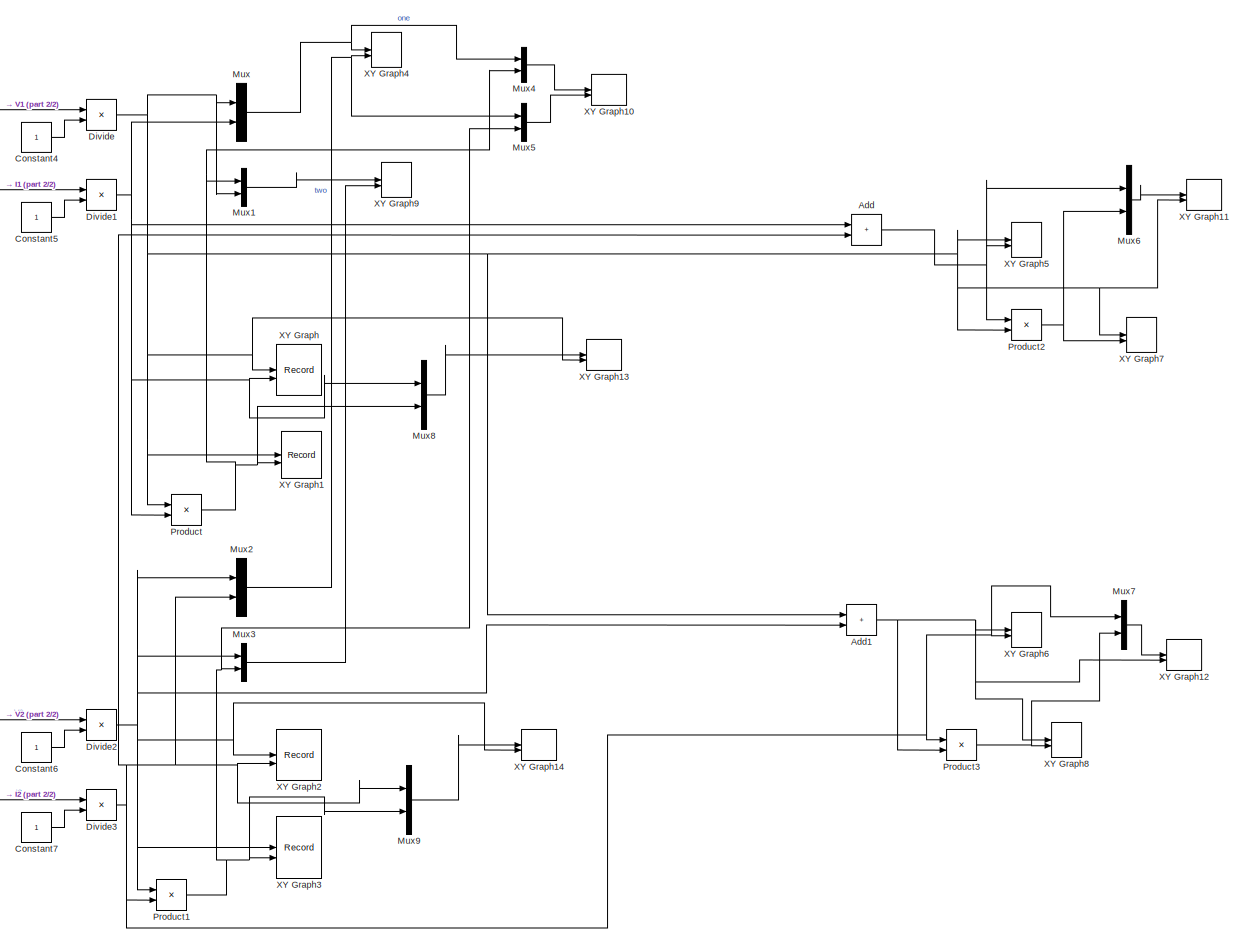
[diagram: root canvas - part 1/2, most of the canvas]
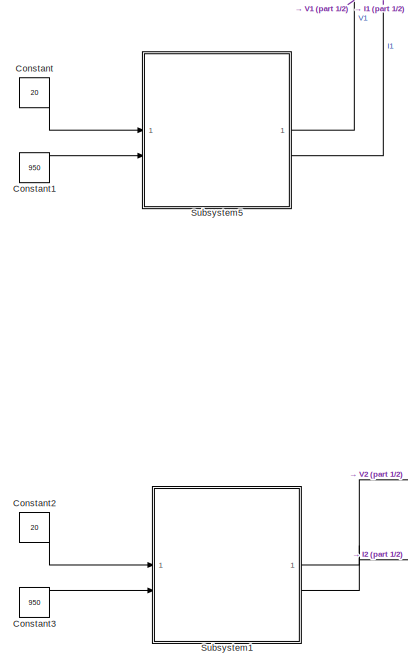
[diagram: root canvas - part 2/2, middle left region]
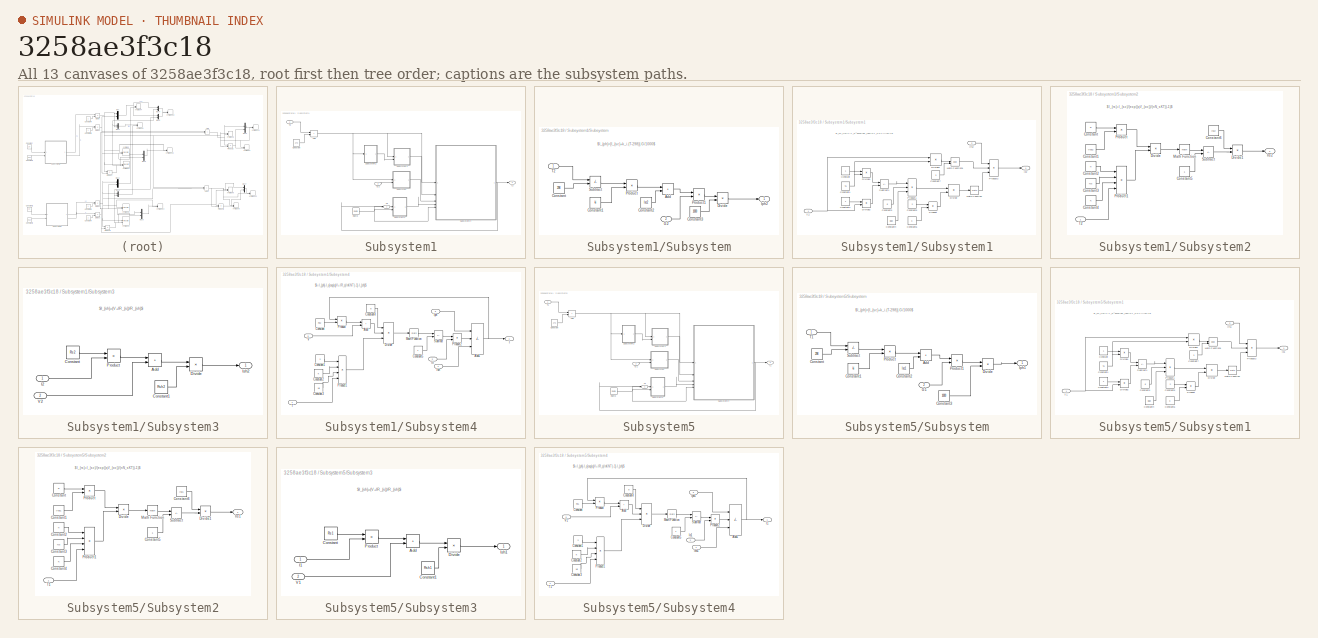
[diagram: thumbnail index - all 13 canvases of the model, root first then tree order]
MODEL slx_3258ae3f3c18
KIND model
CONFIG AbsTol = auto
CONFIG EnableMultiTasking = off
CONFIG FixedStep = auto
CONFIG InitFcn = Rs1=0.22;\nRsh1=100000;\nVoc1=0.7;\nIsc1=0.04;\n\nRs2=0.22;\nRsh2=360;\nVoc2=0.7;\nIsc2=0.04;\n\nki=0.00005926;\n%ki=0;\nq=1.6e-19;\nK=1.30e-23;\nn=1.3;\nEgo=1.1;\nTn=298;\nNs=1;
CONFIG MaxStep = auto
CONFIG MinStep = auto
CONFIG RelTol = 1e-3
CONFIG SampleTimeConstraint = Unconstrained
CONFIG SolverName = VariableStepAuto
CONFIG StartTime = 0.0
CONFIG StopTime = 2.5
BLOCK [Sum] Add
  IconShape = rectangular
BLOCK [Sum] Add1
  IconShape = rectangular
BLOCK [Constant] Constant
  Value = 20
BLOCK [Constant] Constant1
  Value = 950
BLOCK [Constant] Constant2
  Value = 20
BLOCK [Constant] Constant3
  Value = 950
BLOCK [Constant] Constant4
BLOCK [Constant] Constant5
BLOCK [Constant] Constant6
BLOCK [Constant] Constant7
BLOCK [Product] Divide
  Inputs = */
BLOCK [Product] Divide1
  Inputs = */
BLOCK [Product] Divide2
  Inputs = */
BLOCK [Product] Divide3
  Inputs = */
BLOCK [Mux] Mux
  DisplayOption = bar
  Inputs = 2
BLOCK [Mux] Mux1
  DisplayOption = bar
  Inputs = 2
BLOCK [Mux] Mux2
  DisplayOption = bar
  Inputs = 2
BLOCK [Mux] Mux3
  DisplayOption = bar
  Inputs = 2
BLOCK [Mux] Mux4
  DisplayOption = bar
  Inputs = 2
BLOCK [Mux] Mux5
  DisplayOption = bar
  Inputs = 2
BLOCK [Mux] Mux6
  DisplayOption = bar
  Inputs = 2
BLOCK [Mux] Mux7
  DisplayOption = bar
  Inputs = 2
BLOCK [Mux] Mux8
  DisplayOption = bar
  Inputs = 2
BLOCK [Mux] Mux9
  DisplayOption = bar
  Inputs = 2
BLOCK [Product] Product
BLOCK [Product] Product1
BLOCK [Product] Product2
BLOCK [Product] Product3
BLOCK [SubSystem] Subsystem1
BLOCK [Sum] Subsystem1/Add
  IconShape = rectangular
BLOCK [Constant] Subsystem1/Constant
  Value = 273
BLOCK [Inport] Subsystem1/G2
  Port = 2
BLOCK [Outport] Subsystem1/I2
  Port = 2
BLOCK [Reference] Subsystem1/Ramp  REF=simulink/Sources/Ramp
  SourceBlock = simulink/Sources/Ramp
  SourceType = Ramp
BLOCK [SubSystem] Subsystem1/Subsystem
BLOCK [Sum] Subsystem1/Subsystem/Add
  IconShape = rectangular
BLOCK [Constant] Subsystem1/Subsystem/Constant
  Value = 298
BLOCK [Constant] Subsystem1/Subsystem/Constant1
  Value = ki
BLOCK [Constant] Subsystem1/Subsystem/Constant2
  Value = Isc2
BLOCK [Constant] Subsystem1/Subsystem/Constant3
  Value = 1000
BLOCK [Product] Subsystem1/Subsystem/Divide
  Inputs = */
BLOCK [Inport] Subsystem1/Subsystem/G2
  Port = 2
BLOCK [Outport] Subsystem1/Subsystem/Iph2
BLOCK [Product] Subsystem1/Subsystem/Product
BLOCK [Product] Subsystem1/Subsystem/Product1
BLOCK [Sum] Subsystem1/Subsystem/Subtract
  IconShape = rectangular
  Inputs = +-
BLOCK [Inport] Subsystem1/Subsystem/T2
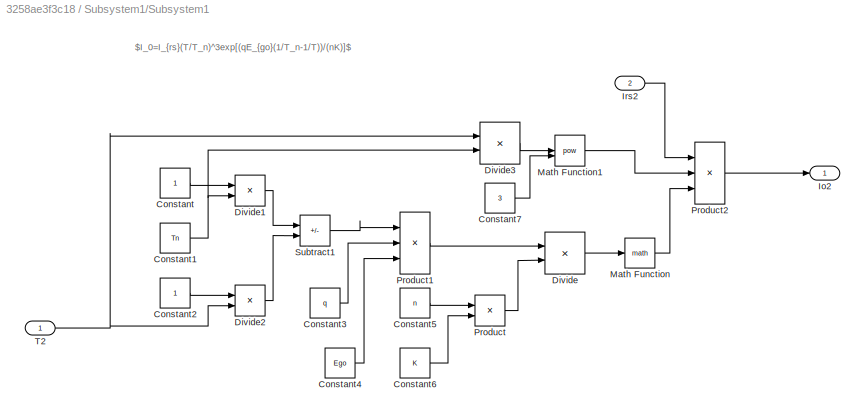
BLOCK [SubSystem] Subsystem1/Subsystem1
BLOCK [Constant] Subsystem1/Subsystem1/Constant
BLOCK [Constant] Subsystem1/Subsystem1/Constant1
  Value = Tn
BLOCK [Constant] Subsystem1/Subsystem1/Constant2
BLOCK [Constant] Subsystem1/Subsystem1/Constant3
  Value = q
BLOCK [Constant] Subsystem1/Subsystem1/Constant4
  Value = Ego
BLOCK [Constant] Subsystem1/Subsystem1/Constant5
  Value = n
BLOCK [Constant] Subsystem1/Subsystem1/Constant6
  Value = K
BLOCK [Constant] Subsystem1/Subsystem1/Constant7
  Value = 3
BLOCK [Product] Subsystem1/Subsystem1/Divide
  Inputs = */
BLOCK [Product] Subsystem1/Subsystem1/Divide1
  Inputs = */
BLOCK [Product] Subsystem1/Subsystem1/Divide2
  Inputs = */
BLOCK [Product] Subsystem1/Subsystem1/Divide3
  Inputs = */
BLOCK [Outport] Subsystem1/Subsystem1/Io2
BLOCK [Inport] Subsystem1/Subsystem1/Irs2
  Port = 2
BLOCK [Math] Subsystem1/Subsystem1/Math Function
BLOCK [Math] Subsystem1/Subsystem1/Math Function1
  Operator = pow
BLOCK [Product] Subsystem1/Subsystem1/Product
BLOCK [Product] Subsystem1/Subsystem1/Product1
  Inputs = 3
BLOCK [Product] Subsystem1/Subsystem1/Product2
  Inputs = 3
BLOCK [Sum] Subsystem1/Subsystem1/Subtract1
  IconShape = rectangular
  Inputs = +-
BLOCK [Inport] Subsystem1/Subsystem1/T2
BLOCK [SubSystem] Subsystem1/Subsystem2
BLOCK [Constant] Subsystem1/Subsystem2/Constant
  Value = q
BLOCK [Constant] Subsystem1/Subsystem2/Constant1
  Value = Voc2
BLOCK [Constant] Subsystem1/Subsystem2/Constant2
  Value = n
BLOCK [Constant] Subsystem1/Subsystem2/Constant3
  Value = Ns
BLOCK [Constant] Subsystem1/Subsystem2/Constant4
  Value = K
BLOCK [Constant] Subsystem1/Subsystem2/Constant5
BLOCK [Constant] Subsystem1/Subsystem2/Constant6
  Value = Isc2
BLOCK [Product] Subsystem1/Subsystem2/Divide
  Inputs = */
BLOCK [Product] Subsystem1/Subsystem2/Divide1
  Inputs = */
BLOCK [Outport] Subsystem1/Subsystem2/Irs2
BLOCK [Math] Subsystem1/Subsystem2/Math Function
BLOCK [Product] Subsystem1/Subsystem2/Product
BLOCK [Product] Subsystem1/Subsystem2/Product1
  Inputs = 4
BLOCK [Sum] Subsystem1/Subsystem2/Subtract
  IconShape = rectangular
  Inputs = +-
BLOCK [Inport] Subsystem1/Subsystem2/T2
BLOCK [SubSystem] Subsystem1/Subsystem3
BLOCK [Sum] Subsystem1/Subsystem3/Add
  IconShape = rectangular
BLOCK [Constant] Subsystem1/Subsystem3/Constant
  Value = Rs2
BLOCK [Constant] Subsystem1/Subsystem3/Constant1
  Value = Rsh2
BLOCK [Product] Subsystem1/Subsystem3/Divide
  Inputs = */
BLOCK [Inport] Subsystem1/Subsystem3/I2
BLOCK [Outport] Subsystem1/Subsystem3/Ish2
BLOCK [Product] Subsystem1/Subsystem3/Product
BLOCK [Inport] Subsystem1/Subsystem3/V2
  Port = 2
BLOCK [SubSystem] Subsystem1/Subsystem4
BLOCK [Sum] Subsystem1/Subsystem4/Add
  IconShape = rectangular
BLOCK [Sum] Subsystem1/Subsystem4/Add1
  IconShape = rectangular
  Inputs = +--
BLOCK [Constant] Subsystem1/Subsystem4/Constant
  Value = Rs2
BLOCK [Constant] Subsystem1/Subsystem4/Constant1
  Value = n
BLOCK [Constant] Subsystem1/Subsystem4/Constant2
  Value = K
BLOCK [Constant] Subsystem1/Subsystem4/Constant3
  Value = Ns
BLOCK [Constant] Subsystem1/Subsystem4/Constant4
  Value = q
BLOCK [Constant] Subsystem1/Subsystem4/Constant5
BLOCK [Product] Subsystem1/Subsystem4/Divide
  Inputs = **/
BLOCK [Outport] Subsystem1/Subsystem4/I
BLOCK [Inport] Subsystem1/Subsystem4/Io
  Port = 2
BLOCK [Inport] Subsystem1/Subsystem4/Iph
  Port = 3
BLOCK [Inport] Subsystem1/Subsystem4/Ish
  Port = 4
BLOCK [Math] Subsystem1/Subsystem4/Math Function
BLOCK [Product] Subsystem1/Subsystem4/Product
BLOCK [Product] Subsystem1/Subsystem4/Product1
  Inputs = 4
BLOCK [Product] Subsystem1/Subsystem4/Product2
BLOCK [Sum] Subsystem1/Subsystem4/Subtract
  IconShape = rectangular
  Inputs = +-
BLOCK [Inport] Subsystem1/Subsystem4/T
BLOCK [Inport] Subsystem1/Subsystem4/V
  Port = 5
BLOCK [Inport] Subsystem1/T2
BLOCK [Outport] Subsystem1/V2
BLOCK [SubSystem] Subsystem5
BLOCK [Sum] Subsystem5/Add
  IconShape = rectangular
BLOCK [Constant] Subsystem5/Constant
  Value = 273
BLOCK [Inport] Subsystem5/G1
  Port = 2
BLOCK [Outport] Subsystem5/I1
  Port = 2
BLOCK [Reference] Subsystem5/Ramp  REF=simulink/Sources/Ramp
  SourceBlock = simulink/Sources/Ramp
  SourceType = Ramp
BLOCK [SubSystem] Subsystem5/Subsystem
BLOCK [Sum] Subsystem5/Subsystem/Add
  IconShape = rectangular
BLOCK [Constant] Subsystem5/Subsystem/Constant
  Value = 298
BLOCK [Constant] Subsystem5/Subsystem/Constant1
  Value = ki
BLOCK [Constant] Subsystem5/Subsystem/Constant2
  Value = Isc1
BLOCK [Constant] Subsystem5/Subsystem/Constant3
  Value = 1000
BLOCK [Product] Subsystem5/Subsystem/Divide
  Inputs = */
BLOCK [Inport] Subsystem5/Subsystem/G1
  Port = 2
BLOCK [Outport] Subsystem5/Subsystem/Iph1
BLOCK [Product] Subsystem5/Subsystem/Product
BLOCK [Product] Subsystem5/Subsystem/Product1
BLOCK [Sum] Subsystem5/Subsystem/Subtract
  IconShape = rectangular
  Inputs = +-
BLOCK [Inport] Subsystem5/Subsystem/T1
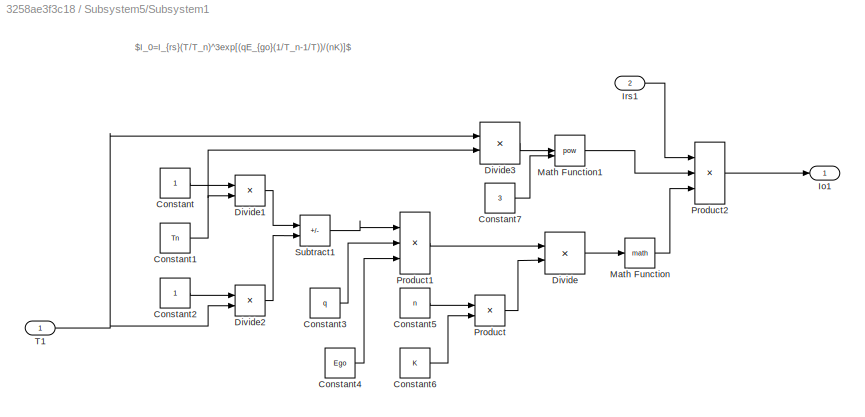
BLOCK [SubSystem] Subsystem5/Subsystem1
BLOCK [Constant] Subsystem5/Subsystem1/Constant
BLOCK [Constant] Subsystem5/Subsystem1/Constant1
  Value = Tn
BLOCK [Constant] Subsystem5/Subsystem1/Constant2
BLOCK [Constant] Subsystem5/Subsystem1/Constant3
  Value = q
BLOCK [Constant] Subsystem5/Subsystem1/Constant4
  Value = Ego
BLOCK [Constant] Subsystem5/Subsystem1/Constant5
  Value = n
BLOCK [Constant] Subsystem5/Subsystem1/Constant6
  Value = K
BLOCK [Constant] Subsystem5/Subsystem1/Constant7
  Value = 3
BLOCK [Product] Subsystem5/Subsystem1/Divide
  Inputs = */
BLOCK [Product] Subsystem5/Subsystem1/Divide1
  Inputs = */
BLOCK [Product] Subsystem5/Subsystem1/Divide2
  Inputs = */
BLOCK [Product] Subsystem5/Subsystem1/Divide3
  Inputs = */
BLOCK [Outport] Subsystem5/Subsystem1/Io1
BLOCK [Inport] Subsystem5/Subsystem1/Irs1
  Port = 2
BLOCK [Math] Subsystem5/Subsystem1/Math Function
BLOCK [Math] Subsystem5/Subsystem1/Math Function1
  Operator = pow
BLOCK [Product] Subsystem5/Subsystem1/Product
BLOCK [Product] Subsystem5/Subsystem1/Product1
  Inputs = 3
BLOCK [Product] Subsystem5/Subsystem1/Product2
  Inputs = 3
BLOCK [Sum] Subsystem5/Subsystem1/Subtract1
  IconShape = rectangular
  Inputs = +-
BLOCK [Inport] Subsystem5/Subsystem1/T1
BLOCK [SubSystem] Subsystem5/Subsystem2
BLOCK [Constant] Subsystem5/Subsystem2/Constant
  Value = q
BLOCK [Constant] Subsystem5/Subsystem2/Constant1
  Value = Voc1
BLOCK [Constant] Subsystem5/Subsystem2/Constant2
  Value = n
BLOCK [Constant] Subsystem5/Subsystem2/Constant3
  Value = Ns
BLOCK [Constant] Subsystem5/Subsystem2/Constant4
  Value = K
BLOCK [Constant] Subsystem5/Subsystem2/Constant5
BLOCK [Constant] Subsystem5/Subsystem2/Constant6
  Value = Isc1
BLOCK [Product] Subsystem5/Subsystem2/Divide
  Inputs = */
BLOCK [Product] Subsystem5/Subsystem2/Divide1
  Inputs = */
BLOCK [Outport] Subsystem5/Subsystem2/Irs1
BLOCK [Math] Subsystem5/Subsystem2/Math Function
BLOCK [Product] Subsystem5/Subsystem2/Product
BLOCK [Product] Subsystem5/Subsystem2/Product1
  Inputs = 4
BLOCK [Sum] Subsystem5/Subsystem2/Subtract
  IconShape = rectangular
  Inputs = +-
BLOCK [Inport] Subsystem5/Subsystem2/T1
BLOCK [SubSystem] Subsystem5/Subsystem3
BLOCK [Sum] Subsystem5/Subsystem3/Add
  IconShape = rectangular
BLOCK [Constant] Subsystem5/Subsystem3/Constant
  Value = Rs1
BLOCK [Constant] Subsystem5/Subsystem3/Constant1
  Value = Rsh1
BLOCK [Product] Subsystem5/Subsystem3/Divide
  Inputs = */
BLOCK [Inport] Subsystem5/Subsystem3/I1
BLOCK [Outport] Subsystem5/Subsystem3/Ish1
BLOCK [Product] Subsystem5/Subsystem3/Product
BLOCK [Inport] Subsystem5/Subsystem3/V1
  Port = 2
BLOCK [SubSystem] Subsystem5/Subsystem4
BLOCK [Sum] Subsystem5/Subsystem4/Add
  IconShape = rectangular
BLOCK [Sum] Subsystem5/Subsystem4/Add1
  IconShape = rectangular
  Inputs = +--
BLOCK [Constant] Subsystem5/Subsystem4/Constant
  Value = Rs1
BLOCK [Constant] Subsystem5/Subsystem4/Constant1
  Value = n
BLOCK [Constant] Subsystem5/Subsystem4/Constant2
  Value = K
BLOCK [Constant] Subsystem5/Subsystem4/Constant3
  Value = Ns
BLOCK [Constant] Subsystem5/Subsystem4/Constant4
  Value = q
BLOCK [Constant] Subsystem5/Subsystem4/Constant5
BLOCK [Product] Subsystem5/Subsystem4/Divide
  Inputs = **/
BLOCK [Outport] Subsystem5/Subsystem4/I1
BLOCK [Inport] Subsystem5/Subsystem4/Io1
  Port = 2
BLOCK [Inport] Subsystem5/Subsystem4/Iph1
  Port = 3
BLOCK [Inport] Subsystem5/Subsystem4/Ish1
  Port = 4
BLOCK [Math] Subsystem5/Subsystem4/Math Function
BLOCK [Product] Subsystem5/Subsystem4/Product
BLOCK [Product] Subsystem5/Subsystem4/Product1
  Inputs = 4
BLOCK [Product] Subsystem5/Subsystem4/Product2
BLOCK [Sum] Subsystem5/Subsystem4/Subtract
  IconShape = rectangular
  Inputs = +-
BLOCK [Inport] Subsystem5/Subsystem4/T1
BLOCK [Inport] Subsystem5/Subsystem4/V1
  Port = 5
BLOCK [Inport] Subsystem5/T1
BLOCK [Outport] Subsystem5/V1
BLOCK [Record] XY Graph
  CompatibilityTag = XY
  FileSettingsInternal = {"entries":[{"content":{"excelSettings":{"content":{},"type":"Streamout.ExcelSettings"}},"type":"Streamout.FileSettingStorage","uuid":""}],"packageUris":["http:\/\/schema.mathworks.com\/mf0\/streamout_blocks\/R2020a"],"version":"1.0"}  <repeated x15 — deduplicated; at blocks: XY Graph, XY Graph1, XY Graph10, XY Graph11, XY Graph12, XY Graph13, XY Graph14, XY Graph2, XY Graph3, XY Graph4, XY Graph5, XY Graph6, XY Graph7, XY Graph8, XY Graph9>
  Layout = [1 1]
  SignalsInternal = {"entries":[{"content":{"signals":[{"content":{"blockPath":[],"dimensions":[1],"domain":"","lineColor":"#edb120","port":1,"sid":[""],"signalID":1,"signalName":"Divide"},"type":"RecordBlkView.Signal","uuid":""},{"content":{"blockPath":[],"dimensions":[1],"domain":"","lineColor":"#7e2f8e","port":2,"sid":[""],"signalID":2,"signalName":"Divide1"},"type":"RecordBlkView.Signal","uuid":""}]},"type":"Reco...<+131ch>
  VisualizationBindings = {"xyplotplugin":{"info":[{"series":[],"subplotID":1}]}}
  st = -1
BLOCK [Record] XY Graph1
  CompatibilityTag = XY
  Layout = [1 1]
  SignalsInternal = {"entries":[{"content":{"signals":[{"content":{"blockPath":[],"dimensions":[1],"domain":"","lineColor":"#77ac30","port":1,"sid":[""],"signalID":1,"signalName":"Divide"},"type":"RecordBlkView.Signal","uuid":""},{"content":{"blockPath":[],"dimensions":[1],"domain":"","lineColor":"#4dbeee","port":2,"sid":[""],"signalID":2,"signalName":"Product"},"type":"RecordBlkView.Signal","uuid":""}]},"type":"Reco...<+131ch>
  VisualizationBindings = {"xyplotplugin":{"info":[{"series":[],"subplotID":1}]}}
  st = -1
BLOCK [Record] XY Graph10
  CompatibilityTag = XY
  Layout = [1 1]
  SignalsInternal = {"entries":[{"content":{"signals":[{"content":{"blockPath":[],"dimensions":[3],"domain":"","hasChildren":true,"lineColor":"#a2142f","port":1,"sid":[""],"signalID":1,"signalName":"Mux4"},"type":"RecordBlkView.Signal","uuid":""},{"content":{"blockPath":[],"channel":[1],"dimensions":[3],"domain":"","lineColor":"#139fff","parentID":1,"port":1,"sid":[""],"signalID":2,"signalName":"Mux4"},"type":"Record...<+1364ch>
  VisualizationBindings = {"xyplotplugin":{"info":[{"series":[],"subplotID":1}]}}
BLOCK [Record] XY Graph11
  CompatibilityTag = XY
  Layout = [1 1]
  SignalsInternal = {"entries":[{"content":{"signals":[{"content":{"blockPath":[],"dimensions":[2],"domain":"","hasChildren":true,"lineColor":"#64d413","port":1,"sid":[""],"signalID":1,"signalName":"Mux6"},"type":"RecordBlkView.Signal","uuid":""},{"content":{"blockPath":[],"channel":[1],"dimensions":[2],"domain":"","lineColor":"#ff13a6","parentID":1,"port":1,"sid":[""],"signalID":2,"signalName":"Mux6"},"type":"Record...<+547ch>
  VisualizationBindings = {"xyplotplugin":{"info":[{"series":[],"subplotID":1}]}}
BLOCK [Record] XY Graph12
  CompatibilityTag = XY
  Layout = [1 1]
  SignalsInternal = {"entries":[{"content":{"signals":[{"content":{"blockPath":[],"dimensions":[2],"domain":"","hasChildren":true,"lineColor":"#22b573","port":1,"sid":[""],"signalID":1,"signalName":"Mux7"},"type":"RecordBlkView.Signal","uuid":""},{"content":{"blockPath":[],"channel":[1],"dimensions":[2],"domain":"","lineColor":"#0072bd","parentID":1,"port":1,"sid":[""],"signalID":2,"signalName":"Mux7"},"type":"Record...<+545ch>
  VisualizationBindings = {"xyplotplugin":{"info":[{"series":[],"subplotID":1}]}}
BLOCK [Record] XY Graph13
  CompatibilityTag = XY
  Layout = [1 1]
  SignalsInternal = {"entries":[{"content":{"signals":[{"content":{"blockPath":[],"dimensions":[2],"domain":"","hasChildren":true,"lineColor":"#edb120","port":1,"sid":[""],"signalID":1,"signalName":"Mux8"},"type":"RecordBlkView.Signal","uuid":""},{"content":{"blockPath":[],"channel":[1],"dimensions":[2],"domain":"","lineColor":"#7e2f8e","parentID":1,"port":1,"sid":[""],"signalID":2,"signalName":"Mux8"},"type":"Record...<+547ch>
  VisualizationBindings = {"xyplotplugin":{"info":[{"series":[],"subplotID":1}]}}
BLOCK [Record] XY Graph14
  CompatibilityTag = XY
  Layout = [1 1]
  SignalsInternal = {"entries":[{"content":{"signals":[{"content":{"blockPath":[],"dimensions":[2],"domain":"","hasChildren":true,"lineColor":"#4dbeee","port":1,"sid":[""],"signalID":1,"signalName":"Mux9"},"type":"RecordBlkView.Signal","uuid":""},{"content":{"blockPath":[],"channel":[1],"dimensions":[2],"domain":"","lineColor":"#a2142f","parentID":1,"port":1,"sid":[""],"signalID":2,"signalName":"Mux9"},"type":"Record...<+548ch>
  VisualizationBindings = {"xyplotplugin":{"info":[{"series":[],"subplotID":1}]}}
BLOCK [Record] XY Graph2
  CompatibilityTag = XY
  Layout = [1 1]
  SignalsInternal = {"entries":[{"content":{"signals":[{"content":{"blockPath":[],"dimensions":[1],"domain":"","lineColor":"#ff6929","port":1,"sid":[""],"signalID":1,"signalName":"Divide2"},"type":"RecordBlkView.Signal","uuid":""},{"content":{"blockPath":[],"dimensions":[1],"domain":"","lineColor":"#b746ff","port":2,"sid":[""],"signalID":2,"signalName":"Divide3"},"type":"RecordBlkView.Signal","uuid":""}]},"type":"Rec...<+132ch>
  VisualizationBindings = {"xyplotplugin":{"info":[{"series":[],"subplotID":1}]}}
  st = -1
BLOCK [Record] XY Graph3
  CompatibilityTag = XY
  Layout = [1 1]
  SignalsInternal = {"entries":[{"content":{"signals":[{"content":{"blockPath":[],"dimensions":[1],"domain":"","lineColor":"#64d413","port":1,"sid":[""],"signalID":1,"signalName":"Divide2"},"type":"RecordBlkView.Signal","uuid":""},{"content":{"blockPath":[],"dimensions":[1],"domain":"","lineColor":"#ff13a6","port":2,"sid":[""],"signalID":2,"signalName":"Product1"},"type":"RecordBlkView.Signal","uuid":""}]},"type":"Re...<+133ch>
  VisualizationBindings = {"xyplotplugin":{"info":[{"series":[],"subplotID":1}]}}
  st = -1
BLOCK [Record] XY Graph4
  CompatibilityTag = XY
  Layout = [1 1]
  SignalsInternal = {"entries":[{"content":{"signals":[{"content":{"blockPath":[],"dimensions":[2],"domain":"","hasChildren":true,"lineColor":"#fe330a","port":1,"sid":[""],"signalID":1,"signalName":"one"},"type":"RecordBlkView.Signal","uuid":""},{"content":{"blockPath":[],"channel":[1],"dimensions":[2],"domain":"","lineColor":"#22b573","parentID":1,"port":1,"sid":[""],"signalID":2,"signalName":"one"},"type":"RecordBl...<+958ch>
  VisualizationBindings = {"xyplotplugin":{"info":[{"series":[],"subplotID":1}]}}
  st = -1
BLOCK [Record] XY Graph5
  CompatibilityTag = XY
  Layout = [1 1]
  SignalsInternal = {"entries":[{"content":{"signals":[{"content":{"blockPath":[],"dimensions":[1],"domain":"","lineColor":"#edb120","port":1,"sid":[""],"signalID":1,"signalName":"Divide"},"type":"RecordBlkView.Signal","uuid":""},{"content":{"blockPath":[],"dimensions":[1],"domain":"","lineColor":"#7e2f8e","port":2,"sid":[""],"signalID":2,"signalName":"Add"},"type":"RecordBlkView.Signal","uuid":""}]},"type":"RecordBl...<+127ch>
  VisualizationBindings = {"xyplotplugin":{"info":[{"series":[],"subplotID":1}]}}
  st = -1
BLOCK [Record] XY Graph6
  CompatibilityTag = XY
  Layout = [1 1]
  SignalsInternal = {"entries":[{"content":{"signals":[{"content":{"blockPath":[],"dimensions":[1],"domain":"","lineColor":"#77ac30","port":1,"sid":[""],"signalID":1,"signalName":"Add1"},"type":"RecordBlkView.Signal","uuid":""},{"content":{"blockPath":[],"dimensions":[1],"domain":"","lineColor":"#4dbeee","port":2,"sid":[""],"signalID":2,"signalName":"Divide3"},"type":"RecordBlkView.Signal","uuid":""}]},"type":"Record...<+129ch>
  VisualizationBindings = {"xyplotplugin":{"info":[{"series":[],"subplotID":1}]}}
  st = -1
BLOCK [Record] XY Graph7
  CompatibilityTag = XY
  Layout = [1 1]
  SignalsInternal = {"entries":[{"content":{"signals":[{"content":{"blockPath":[],"dimensions":[1],"domain":"","lineColor":"#a2142f","port":1,"sid":[""],"signalID":1,"signalName":"Divide"},"type":"RecordBlkView.Signal","uuid":""},{"content":{"blockPath":[],"dimensions":[1],"domain":"","lineColor":"#139fff","port":2,"sid":[""],"signalID":2,"signalName":"Product2"},"type":"RecordBlkView.Signal","uuid":""}]},"type":"Rec...<+132ch>
  VisualizationBindings = {"xyplotplugin":{"info":[{"series":[],"subplotID":1}]}}
  st = -1
BLOCK [Record] XY Graph8
  CompatibilityTag = XY
  Layout = [1 1]
  SignalsInternal = {"entries":[{"content":{"signals":[{"content":{"blockPath":[],"dimensions":[1],"domain":"","lineColor":"#ff6929","port":1,"sid":[""],"signalID":1,"signalName":"Add1"},"type":"RecordBlkView.Signal","uuid":""},{"content":{"blockPath":[],"dimensions":[1],"domain":"","lineColor":"#b746ff","port":2,"sid":[""],"signalID":2,"signalName":"Product3"},"type":"RecordBlkView.Signal","uuid":""}]},"type":"Recor...<+130ch>
  VisualizationBindings = {"xyplotplugin":{"info":[{"series":[],"subplotID":1}]}}
  st = -1
BLOCK [Record] XY Graph9
  CompatibilityTag = XY
  Layout = [1 1]
  SignalsInternal = {"entries":[{"content":{"signals":[{"content":{"blockPath":[],"dimensions":[2],"domain":"","hasChildren":true,"lineColor":"#64d413","port":1,"sid":[""],"signalID":1,"signalName":"Mux1"},"type":"RecordBlkView.Signal","uuid":""},{"content":{"blockPath":[],"channel":[1],"dimensions":[2],"domain":"","lineColor":"#ff13a6","parentID":1,"plots":[ 1 ],"port":1,"sid":[""],"signalID":2,"signalName":"Mux1"},...<+1020ch>
  VisualizationBindings = {"xyplotplugin":{"info":[{"series":[{"bindingParametersList":[{"parameter":"X-Axis","signalID":5,"signalName":"Mux1(2)"},{"parameter":"Y-Axis","signalID":2,"signalName":"Mux1(1)"}],"seriesID":0},{"bindingParametersList":[{"parameter":"X-Axis","signalID":4,"signalName":"Mux3(1)"},{"parameter":"Y-Axis","signalID":6,"signalName":"Mux3(2)"}],"seriesID":1}],"subplotID":1}]}}
  st = -1
ANNOTATION Subsystem1/Subsystem: $I_{ph}=[I_{sc}+k_i.(T-298)].G/1000$
ANNOTATION Subsystem1/Subsystem1: $I_0=I_{rs}(T/T_n)^3exp[(qE_{go}(1/T_n-1/T))/(nK)]$
ANNOTATION Subsystem1/Subsystem2: $I_{rs}=I_{sc}/(exp((qV_{oc})/(nN_sKT))-1)$
ANNOTATION Subsystem1/Subsystem3: $I_{sh}=(V+IR_{s})/R_{sh}$
ANNOTATION Subsystem1/Subsystem4: $I=I_{ph}-I_o[exp(q(V+IR_s)/nKNT)-1]-I_{sh}$
ANNOTATION Subsystem5/Subsystem: $I_{ph}=[I_{sc}+k_i.(T-298)].G/1000$
ANNOTATION Subsystem5/Subsystem1: $I_0=I_{rs}(T/T_n)^3exp[(qE_{go}(1/T_n-1/T))/(nK)]$
ANNOTATION Subsystem5/Subsystem2: $I_{rs}=I_{sc}/(exp((qV_{oc})/(nN_sKT))-1)$
ANNOTATION Subsystem5/Subsystem3: $I_{sh}=(V+IR_{s})/R_{sh}$
ANNOTATION Subsystem5/Subsystem4: $I=I_{ph}-I_o[exp(q(V+IR_s)/nKNT)-1]-I_{sh}$
NET Add1:1 -> Product3:2, XY Graph12:2, XY Graph6:1, XY Graph8:1
NET Add:1 -> Mux6:1, Product2:1, XY Graph5:2
LINE Constant1:1 -> Subsystem5:2
LINE Constant2:1 -> Subsystem1:1
LINE Constant3:1 -> Subsystem1:2
LINE Constant4:1 -> Divide:2
LINE Constant5:1 -> Divide1:2
LINE Constant6:1 -> Divide2:2
LINE Constant7:1 -> Divide3:2
LINE Constant:1 -> Subsystem5:1
NET Divide1:1 -> Add:1, Mux8:1, Mux:2, Product:2, XY Graph:2
NET Divide2:1 -> Add1:2, Mux2:1, Mux3:1, Product1:1, XY Graph14:2, XY Graph2:1, XY Graph3:1
NET Divide3:1 -> Add:2, Mux2:2, Mux7:1, Mux9:1, Product1:2, Product3:1, XY Graph2:2, XY Graph6:2
NET Divide:1 -> Add1:1, Mux1:2, Mux:1, Product2:2, Product:1, XY Graph11:2, XY Graph13:2, XY Graph1:1, XY Graph5:1, XY Graph7:1, XY Graph:1
LINE Mux1:1 -> XY Graph9:1
NET Mux2:1 -> Mux5:1, XY Graph4:2
LINE Mux3:1 -> XY Graph9:2
LINE Mux4:1 -> XY Graph10:1
LINE Mux5:1 -> XY Graph10:2
LINE Mux6:1 -> XY Graph11:1
LINE Mux7:1 -> XY Graph12:1
LINE Mux8:1 -> XY Graph13:1
LINE Mux9:1 -> XY Graph14:1
NET Mux:1 -> Mux4:1, XY Graph4:1
NET Product1:1 -> Mux3:2, Mux5:2, Mux9:2, XY Graph3:2
NET Product2:1 -> Mux6:2, XY Graph7:2
NET Product3:1 -> Mux7:2, XY Graph8:2
NET Product:1 -> Mux1:1, Mux4:2, Mux8:2, XY Graph1:2
NET Subsystem1/Add:1 -> Subsystem1/Subsystem1:1, Subsystem1/Subsystem2:1, Subsystem1/Subsystem4:1, Subsystem1/Subsystem:1
LINE Subsystem1/Constant:1 -> Subsystem1/Add:2
LINE Subsystem1/G2:1 -> Subsystem1/Subsystem:2
NET Subsystem1/Ramp:1 -> Subsystem1/Subsystem3:2, Subsystem1/Subsystem4:5, Subsystem1/V2:1
LINE Subsystem1/Subsystem/Add:1 -> Subsystem1/Subsystem/Product1:1
LINE Subsystem1/Subsystem/Constant1:1 -> Subsystem1/Subsystem/Product:2
LINE Subsystem1/Subsystem/Constant2:1 -> Subsystem1/Subsystem/Add:2
LINE Subsystem1/Subsystem/Constant3:1 -> Subsystem1/Subsystem/Divide:2
LINE Subsystem1/Subsystem/Constant:1 -> Subsystem1/Subsystem/Subtract:2
LINE Subsystem1/Subsystem/Divide:1 -> Subsystem1/Subsystem/Iph2:1
LINE Subsystem1/Subsystem/G2:1 -> Subsystem1/Subsystem/Product1:2
LINE Subsystem1/Subsystem/Product1:1 -> Subsystem1/Subsystem/Divide:1
LINE Subsystem1/Subsystem/Product:1 -> Subsystem1/Subsystem/Add:1
LINE Subsystem1/Subsystem/Subtract:1 -> Subsystem1/Subsystem/Product:1
LINE Subsystem1/Subsystem/T2:1 -> Subsystem1/Subsystem/Subtract:1
NET Subsystem1/Subsystem1/Constant1:1 -> Subsystem1/Subsystem1/Divide1:2, Subsystem1/Subsystem1/Divide3:2
LINE Subsystem1/Subsystem1/Constant2:1 -> Subsystem1/Subsystem1/Divide2:1
LINE Subsystem1/Subsystem1/Constant3:1 -> Subsystem1/Subsystem1/Product1:2
LINE Subsystem1/Subsystem1/Constant4:1 -> Subsystem1/Subsystem1/Product1:3
LINE Subsystem1/Subsystem1/Constant5:1 -> Subsystem1/Subsystem1/Product:1
LINE Subsystem1/Subsystem1/Constant6:1 -> Subsystem1/Subsystem1/Product:2
LINE Subsystem1/Subsystem1/Constant7:1 -> Subsystem1/Subsystem1/Math Function1:2
LINE Subsystem1/Subsystem1/Constant:1 -> Subsystem1/Subsystem1/Divide1:1
LINE Subsystem1/Subsystem1/Divide1:1 -> Subsystem1/Subsystem1/Subtract1:1
LINE Subsystem1/Subsystem1/Divide2:1 -> Subsystem1/Subsystem1/Subtract1:2
LINE Subsystem1/Subsystem1/Divide3:1 -> Subsystem1/Subsystem1/Math Function1:1
LINE Subsystem1/Subsystem1/Divide:1 -> Subsystem1/Subsystem1/Math Function:1
LINE Subsystem1/Subsystem1/Irs2:1 -> Subsystem1/Subsystem1/Product2:1
LINE Subsystem1/Subsystem1/Math Function1:1 -> Subsystem1/Subsystem1/Product2:2
LINE Subsystem1/Subsystem1/Math Function:1 -> Subsystem1/Subsystem1/Product2:3
LINE Subsystem1/Subsystem1/Product1:1 -> Subsystem1/Subsystem1/Divide:1
LINE Subsystem1/Subsystem1/Product2:1 -> Subsystem1/Subsystem1/Io2:1
LINE Subsystem1/Subsystem1/Product:1 -> Subsystem1/Subsystem1/Divide:2
LINE Subsystem1/Subsystem1/Subtract1:1 -> Subsystem1/Subsystem1/Product1:1
NET Subsystem1/Subsystem1/T2:1 -> Subsystem1/Subsystem1/Divide2:2, Subsystem1/Subsystem1/Divide3:1
LINE Subsystem1/Subsystem1:1 -> Subsystem1/Subsystem4:2
LINE Subsystem1/Subsystem2/Constant1:1 -> Subsystem1/Subsystem2/Product:2
LINE Subsystem1/Subsystem2/Constant2:1 -> Subsystem1/Subsystem2/Product1:1
LINE Subsystem1/Subsystem2/Constant3:1 -> Subsystem1/Subsystem2/Product1:2
LINE Subsystem1/Subsystem2/Constant4:1 -> Subsystem1/Subsystem2/Product1:3
LINE Subsystem1/Subsystem2/Constant5:1 -> Subsystem1/Subsystem2/Subtract:2
LINE Subsystem1/Subsystem2/Constant6:1 -> Subsystem1/Subsystem2/Divide1:1
LINE Subsystem1/Subsystem2/Constant:1 -> Subsystem1/Subsystem2/Product:1
LINE Subsystem1/Subsystem2/Divide1:1 -> Subsystem1/Subsystem2/Irs2:1
LINE Subsystem1/Subsystem2/Divide:1 -> Subsystem1/Subsystem2/Math Function:1
LINE Subsystem1/Subsystem2/Math Function:1 -> Subsystem1/Subsystem2/Subtract:1
LINE Subsystem1/Subsystem2/Product1:1 -> Subsystem1/Subsystem2/Divide:2
LINE Subsystem1/Subsystem2/Product:1 -> Subsystem1/Subsystem2/Divide:1
LINE Subsystem1/Subsystem2/Subtract:1 -> Subsystem1/Subsystem2/Divide1:2
LINE Subsystem1/Subsystem2/T2:1 -> Subsystem1/Subsystem2/Product1:4
LINE Subsystem1/Subsystem2:1 -> Subsystem1/Subsystem1:2
LINE Subsystem1/Subsystem3/Add:1 -> Subsystem1/Subsystem3/Divide:1
LINE Subsystem1/Subsystem3/Constant1:1 -> Subsystem1/Subsystem3/Divide:2
LINE Subsystem1/Subsystem3/Constant:1 -> Subsystem1/Subsystem3/Product:1
LINE Subsystem1/Subsystem3/Divide:1 -> Subsystem1/Subsystem3/Ish2:1
LINE Subsystem1/Subsystem3/I2:1 -> Subsystem1/Subsystem3/Product:2
LINE Subsystem1/Subsystem3/Product:1 -> Subsystem1/Subsystem3/Add:1
LINE Subsystem1/Subsystem3/V2:1 -> Subsystem1/Subsystem3/Add:2
LINE Subsystem1/Subsystem3:1 -> Subsystem1/Subsystem4:4
NET Subsystem1/Subsystem4/Add1:1 -> Subsystem1/Subsystem4/I:1, Subsystem1/Subsystem4/Product:1
LINE Subsystem1/Subsystem4/Add:1 -> Subsystem1/Subsystem4/Divide:2
LINE Subsystem1/Subsystem4/Constant1:1 -> Subsystem1/Subsystem4/Product1:1
LINE Subsystem1/Subsystem4/Constant2:1 -> Subsystem1/Subsystem4/Product1:2
LINE Subsystem1/Subsystem4/Constant3:1 -> Subsystem1/Subsystem4/Product1:3
LINE Subsystem1/Subsystem4/Constant4:1 -> Subsystem1/Subsystem4/Divide:1
LINE Subsystem1/Subsystem4/Constant5:1 -> Subsystem1/Subsystem4/Subtract:2
LINE Subsystem1/Subsystem4/Constant:1 -> Subsystem1/Subsystem4/Product:2
LINE Subsystem1/Subsystem4/Divide:1 -> Subsystem1/Subsystem4/Math Function:1
LINE Subsystem1/Subsystem4/Io:1 -> Subsystem1/Subsystem4/Product2:2
LINE Subsystem1/Subsystem4/Iph:1 -> Subsystem1/Subsystem4/Add1:1
LINE Subsystem1/Subsystem4/Ish:1 -> Subsystem1/Subsystem4/Add1:3
LINE Subsystem1/Subsystem4/Math Function:1 -> Subsystem1/Subsystem4/Subtract:1
LINE Subsystem1/Subsystem4/Product1:1 -> Subsystem1/Subsystem4/Divide:3
LINE Subsystem1/Subsystem4/Product2:1 -> Subsystem1/Subsystem4/Add1:2
LINE Subsystem1/Subsystem4/Product:1 -> Subsystem1/Subsystem4/Add:1
LINE Subsystem1/Subsystem4/Subtract:1 -> Subsystem1/Subsystem4/Product2:1
LINE Subsystem1/Subsystem4/T:1 -> Subsystem1/Subsystem4/Product1:4
LINE Subsystem1/Subsystem4/V:1 -> Subsystem1/Subsystem4/Add:2
NET Subsystem1/Subsystem4:1 -> Subsystem1/I2:1, Subsystem1/Subsystem3:1
LINE Subsystem1/Subsystem:1 -> Subsystem1/Subsystem4:3
LINE Subsystem1/T2:1 -> Subsystem1/Add:1
LINE Subsystem1:1 -> Divide2:1
LINE Subsystem1:2 -> Divide3:1
NET Subsystem5/Add:1 -> Subsystem5/Subsystem1:1, Subsystem5/Subsystem2:1, Subsystem5/Subsystem4:1, Subsystem5/Subsystem:1
LINE Subsystem5/Constant:1 -> Subsystem5/Add:2
LINE Subsystem5/G1:1 -> Subsystem5/Subsystem:2
NET Subsystem5/Ramp:1 -> Subsystem5/Subsystem3:2, Subsystem5/Subsystem4:5, Subsystem5/V1:1
LINE Subsystem5/Subsystem/Add:1 -> Subsystem5/Subsystem/Product1:1
LINE Subsystem5/Subsystem/Constant1:1 -> Subsystem5/Subsystem/Product:2
LINE Subsystem5/Subsystem/Constant2:1 -> Subsystem5/Subsystem/Add:2
LINE Subsystem5/Subsystem/Constant3:1 -> Subsystem5/Subsystem/Divide:2
LINE Subsystem5/Subsystem/Constant:1 -> Subsystem5/Subsystem/Subtract:2
LINE Subsystem5/Subsystem/Divide:1 -> Subsystem5/Subsystem/Iph1:1
LINE Subsystem5/Subsystem/G1:1 -> Subsystem5/Subsystem/Product1:2
LINE Subsystem5/Subsystem/Product1:1 -> Subsystem5/Subsystem/Divide:1
LINE Subsystem5/Subsystem/Product:1 -> Subsystem5/Subsystem/Add:1
LINE Subsystem5/Subsystem/Subtract:1 -> Subsystem5/Subsystem/Product:1
LINE Subsystem5/Subsystem/T1:1 -> Subsystem5/Subsystem/Subtract:1
NET Subsystem5/Subsystem1/Constant1:1 -> Subsystem5/Subsystem1/Divide1:2, Subsystem5/Subsystem1/Divide3:2
LINE Subsystem5/Subsystem1/Constant2:1 -> Subsystem5/Subsystem1/Divide2:1
LINE Subsystem5/Subsystem1/Constant3:1 -> Subsystem5/Subsystem1/Product1:2
LINE Subsystem5/Subsystem1/Constant4:1 -> Subsystem5/Subsystem1/Product1:3
LINE Subsystem5/Subsystem1/Constant5:1 -> Subsystem5/Subsystem1/Product:1
LINE Subsystem5/Subsystem1/Constant6:1 -> Subsystem5/Subsystem1/Product:2
LINE Subsystem5/Subsystem1/Constant7:1 -> Subsystem5/Subsystem1/Math Function1:2
LINE Subsystem5/Subsystem1/Constant:1 -> Subsystem5/Subsystem1/Divide1:1
LINE Subsystem5/Subsystem1/Divide1:1 -> Subsystem5/Subsystem1/Subtract1:1
LINE Subsystem5/Subsystem1/Divide2:1 -> Subsystem5/Subsystem1/Subtract1:2
LINE Subsystem5/Subsystem1/Divide3:1 -> Subsystem5/Subsystem1/Math Function1:1
LINE Subsystem5/Subsystem1/Divide:1 -> Subsystem5/Subsystem1/Math Function:1
LINE Subsystem5/Subsystem1/Irs1:1 -> Subsystem5/Subsystem1/Product2:1
LINE Subsystem5/Subsystem1/Math Function1:1 -> Subsystem5/Subsystem1/Product2:2
LINE Subsystem5/Subsystem1/Math Function:1 -> Subsystem5/Subsystem1/Product2:3
LINE Subsystem5/Subsystem1/Product1:1 -> Subsystem5/Subsystem1/Divide:1
LINE Subsystem5/Subsystem1/Product2:1 -> Subsystem5/Subsystem1/Io1:1
LINE Subsystem5/Subsystem1/Product:1 -> Subsystem5/Subsystem1/Divide:2
LINE Subsystem5/Subsystem1/Subtract1:1 -> Subsystem5/Subsystem1/Product1:1
NET Subsystem5/Subsystem1/T1:1 -> Subsystem5/Subsystem1/Divide2:2, Subsystem5/Subsystem1/Divide3:1
LINE Subsystem5/Subsystem1:1 -> Subsystem5/Subsystem4:2
LINE Subsystem5/Subsystem2/Constant1:1 -> Subsystem5/Subsystem2/Product:2
LINE Subsystem5/Subsystem2/Constant2:1 -> Subsystem5/Subsystem2/Product1:1
LINE Subsystem5/Subsystem2/Constant3:1 -> Subsystem5/Subsystem2/Product1:2
LINE Subsystem5/Subsystem2/Constant4:1 -> Subsystem5/Subsystem2/Product1:3
LINE Subsystem5/Subsystem2/Constant5:1 -> Subsystem5/Subsystem2/Subtract:2
LINE Subsystem5/Subsystem2/Constant6:1 -> Subsystem5/Subsystem2/Divide1:1
LINE Subsystem5/Subsystem2/Constant:1 -> Subsystem5/Subsystem2/Product:1
LINE Subsystem5/Subsystem2/Divide1:1 -> Subsystem5/Subsystem2/Irs1:1
LINE Subsystem5/Subsystem2/Divide:1 -> Subsystem5/Subsystem2/Math Function:1
LINE Subsystem5/Subsystem2/Math Function:1 -> Subsystem5/Subsystem2/Subtract:1
LINE Subsystem5/Subsystem2/Product1:1 -> Subsystem5/Subsystem2/Divide:2
LINE Subsystem5/Subsystem2/Product:1 -> Subsystem5/Subsystem2/Divide:1
LINE Subsystem5/Subsystem2/Subtract:1 -> Subsystem5/Subsystem2/Divide1:2
LINE Subsystem5/Subsystem2/T1:1 -> Subsystem5/Subsystem2/Product1:4
LINE Subsystem5/Subsystem2:1 -> Subsystem5/Subsystem1:2
LINE Subsystem5/Subsystem3/Add:1 -> Subsystem5/Subsystem3/Divide:1
LINE Subsystem5/Subsystem3/Constant1:1 -> Subsystem5/Subsystem3/Divide:2
LINE Subsystem5/Subsystem3/Constant:1 -> Subsystem5/Subsystem3/Product:1
LINE Subsystem5/Subsystem3/Divide:1 -> Subsystem5/Subsystem3/Ish1:1
LINE Subsystem5/Subsystem3/I1:1 -> Subsystem5/Subsystem3/Product:2
LINE Subsystem5/Subsystem3/Product:1 -> Subsystem5/Subsystem3/Add:1
LINE Subsystem5/Subsystem3/V1:1 -> Subsystem5/Subsystem3/Add:2
LINE Subsystem5/Subsystem3:1 -> Subsystem5/Subsystem4:4
NET Subsystem5/Subsystem4/Add1:1 -> Subsystem5/Subsystem4/I1:1, Subsystem5/Subsystem4/Product:1
LINE Subsystem5/Subsystem4/Add:1 -> Subsystem5/Subsystem4/Divide:2
LINE Subsystem5/Subsystem4/Constant1:1 -> Subsystem5/Subsystem4/Product1:1
LINE Subsystem5/Subsystem4/Constant2:1 -> Subsystem5/Subsystem4/Product1:2
LINE Subsystem5/Subsystem4/Constant3:1 -> Subsystem5/Subsystem4/Product1:3
LINE Subsystem5/Subsystem4/Constant4:1 -> Subsystem5/Subsystem4/Divide:1
LINE Subsystem5/Subsystem4/Constant5:1 -> Subsystem5/Subsystem4/Subtract:2
LINE Subsystem5/Subsystem4/Constant:1 -> Subsystem5/Subsystem4/Product:2
LINE Subsystem5/Subsystem4/Divide:1 -> Subsystem5/Subsystem4/Math Function:1
LINE Subsystem5/Subsystem4/Io1:1 -> Subsystem5/Subsystem4/Product2:2
LINE Subsystem5/Subsystem4/Iph1:1 -> Subsystem5/Subsystem4/Add1:1
LINE Subsystem5/Subsystem4/Ish1:1 -> Subsystem5/Subsystem4/Add1:3
LINE Subsystem5/Subsystem4/Math Function:1 -> Subsystem5/Subsystem4/Subtract:1
LINE Subsystem5/Subsystem4/Product1:1 -> Subsystem5/Subsystem4/Divide:3
LINE Subsystem5/Subsystem4/Product2:1 -> Subsystem5/Subsystem4/Add1:2
LINE Subsystem5/Subsystem4/Product:1 -> Subsystem5/Subsystem4/Add:1
LINE Subsystem5/Subsystem4/Subtract:1 -> Subsystem5/Subsystem4/Product2:1
LINE Subsystem5/Subsystem4/T1:1 -> Subsystem5/Subsystem4/Product1:4
LINE Subsystem5/Subsystem4/V1:1 -> Subsystem5/Subsystem4/Add:2
NET Subsystem5/Subsystem4:1 -> Subsystem5/I1:1, Subsystem5/Subsystem3:1
LINE Subsystem5/Subsystem:1 -> Subsystem5/Subsystem4:3
LINE Subsystem5/T1:1 -> Subsystem5/Add:1
LINE Subsystem5:1 -> Divide:1
LINE Subsystem5:2 -> Divide1:1
note: NET lines group one-source signal fan-out (src -> all destinations, sorted); 1:1 wires keep LINE
